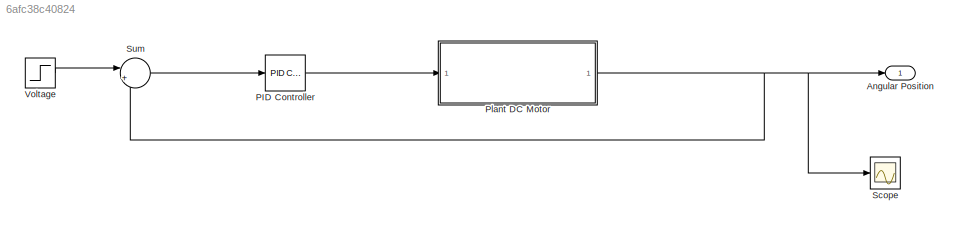
MODEL slx_6afc38c40824
KIND model
CONFIG AbsTol = auto
CONFIG EnableMultiTasking = on
CONFIG FixedStep = auto
CONFIG MaxStep = auto
CONFIG MinStep = auto
CONFIG RelTol = 1e-3
CONFIG SampleTimeConstraint = Unconstrained
CONFIG SolverName = ode45
CONFIG StartTime = 0.0
CONFIG StopTime = 3
BLOCK [Outport] Angular Position
BLOCK [Reference] PID Controller  REF=slpidlib/PID Controller
  LibrarySourceBlock = simulink/Continuous/PID Controller
  SourceBlock = slpidlib/PID Controller
  SourceType = PID 1dof
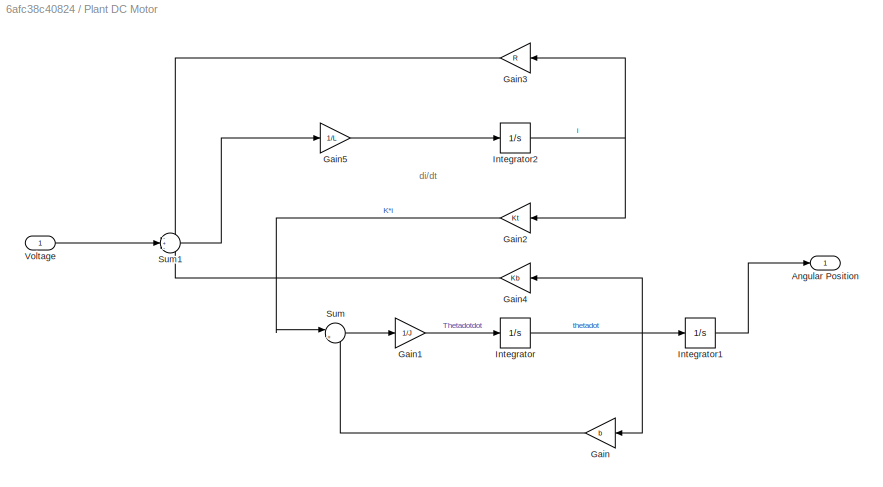
BLOCK [SubSystem] Plant DC Motor
BLOCK [Outport] Plant DC Motor/Angular Position
BLOCK [Gain] Plant DC Motor/Gain
  Gain = b
BLOCK [Gain] Plant DC Motor/Gain1
  Gain = 1/J
BLOCK [Gain] Plant DC Motor/Gain2
  Gain = Kt
BLOCK [Gain] Plant DC Motor/Gain3
  Gain = R
BLOCK [Gain] Plant DC Motor/Gain4
  Gain = Kb
BLOCK [Gain] Plant DC Motor/Gain5
  Gain = 1/L
BLOCK [Integrator] Plant DC Motor/Integrator
BLOCK [Integrator] Plant DC Motor/Integrator1
BLOCK [Integrator] Plant DC Motor/Integrator2
BLOCK [Sum] Plant DC Motor/Sum
  Inputs = |+-
BLOCK [Sum] Plant DC Motor/Sum1
  Inputs = -+-
BLOCK [Inport] Plant DC Motor/Voltage
BLOCK [Scope] Scope
  Floating = off
  NumInputPorts = 1
  ScopeSpecificationString = Simulink.scopes.TimeScopeBlockCfg('CurrentConfiguration', extmgr.ConfigurationSet(extmgr.Configuration('Core','General UI',true),extmgr.Configuration('Core','Source UI',true),extmgr.Configuration('Sources','WiredSimulink',true),extmgr.Configuration('Visuals','Time Domain',true,'SerializedDisplays',{struct('MinYLimReal','-0.1338','MaxYLimReal','1.20417','YLabelReal','','MinYLimMag','0.00000','MaxYL...<+1332ch>
BLOCK [Sum] Sum
  Inputs = |+-
BLOCK [Step] Voltage
  After = V
  SampleTime = 0
ANNOTATION Plant DC Motor: di/dt
LINE PID Controller:1 -> Plant DC Motor:1
LINE Plant DC Motor/Gain1:1 -> Plant DC Motor/Integrator:1
LINE Plant DC Motor/Gain2:1 -> Plant DC Motor/Sum:1
LINE Plant DC Motor/Gain3:1 -> Plant DC Motor/Sum1:1
LINE Plant DC Motor/Gain4:1 -> Plant DC Motor/Sum1:3
LINE Plant DC Motor/Gain5:1 -> Plant DC Motor/Integrator2:1
LINE Plant DC Motor/Gain:1 -> Plant DC Motor/Sum:2
LINE Plant DC Motor/Integrator1:1 -> Plant DC Motor/Angular Position:1
NET Plant DC Motor/Integrator2:1 -> Plant DC Motor/Gain2:1, Plant DC Motor/Gain3:1
NET Plant DC Motor/Integrator:1 -> Plant DC Motor/Gain4:1, Plant DC Motor/Gain:1, Plant DC Motor/Integrator1:1
LINE Plant DC Motor/Sum1:1 -> Plant DC Motor/Gain5:1
LINE Plant DC Motor/Sum:1 -> Plant DC Motor/Gain1:1
LINE Plant DC Motor/Voltage:1 -> Plant DC Motor/Sum1:2
NET Plant DC Motor:1 -> Angular Position:1, Scope:1, Sum:2
LINE Sum:1 -> PID Controller:1
LINE Voltage:1 -> Sum:1
note: NET lines group one-source signal fan-out (src -> all destinations, sorted); 1:1 wires keep LINE
